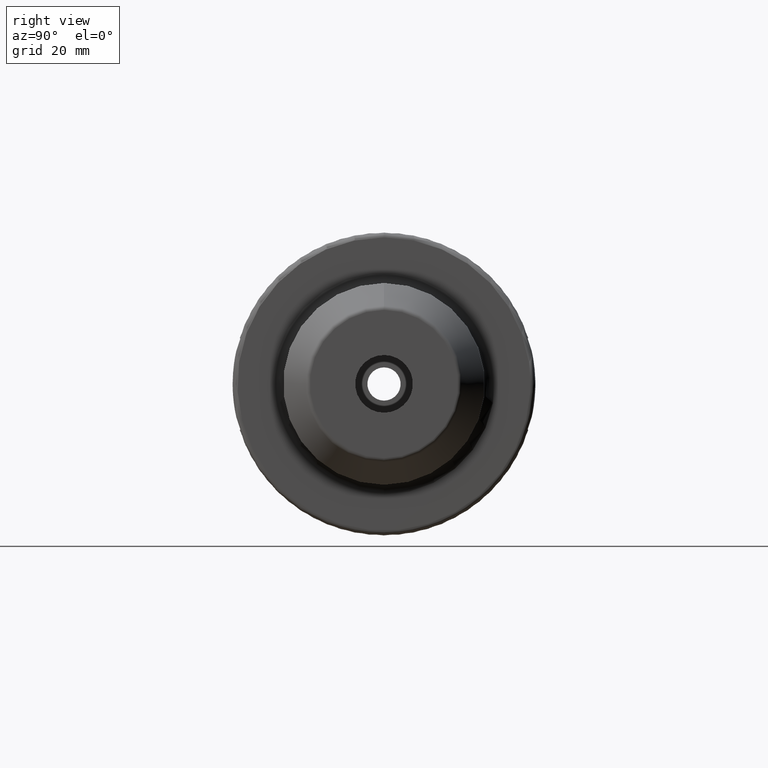
[diagram: clean part render]
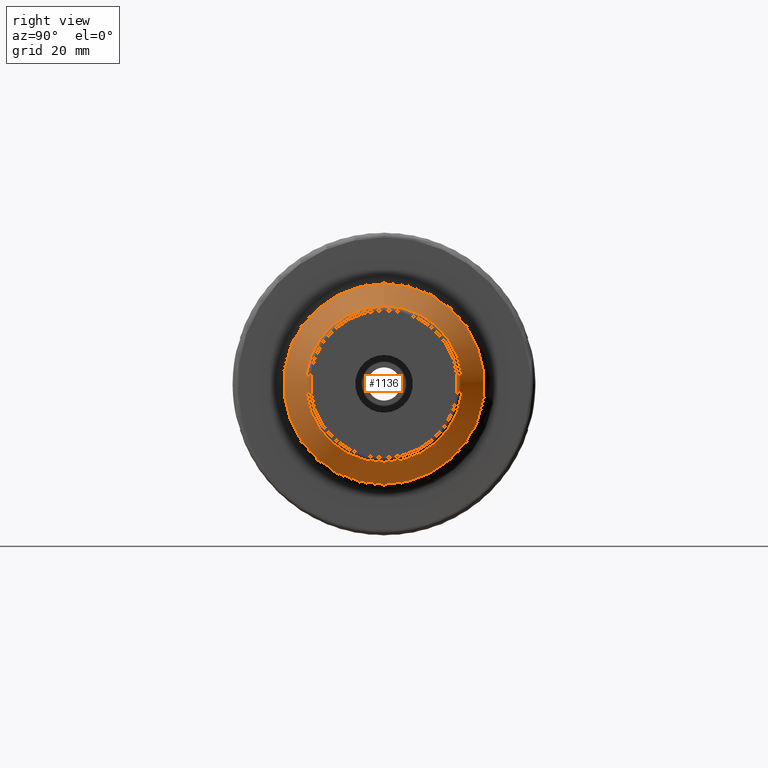
[diagram: same view with one face highlighted and labeled with its STEP entity id]
A machine part, right view. The second image highlights one B-rep face of the part: STEP entity #1136.
In plain terms, the highlighted conical surface has half-angle 30 deg.
Its self-contained STEP definition (entity closure, byte-faithful):
#50=CONICAL_SURFACE('',#1243,18.5,0.523598775598299);
#113=FACE_OUTER_BOUND('',#186,.T.);
#186=EDGE_LOOP('',(#778,#779,#780,#781));
#260=LINE('',#1777,#324);
#324=VECTOR('',#1417,18.5);
#397=CIRCLE('',#1242,16.2886751345948);
#398=CIRCLE('',#1244,20.8660254037844);
#476=VERTEX_POINT('',#1772);
#477=VERTEX_POINT('',#1776);
#592=EDGE_CURVE('',#476,#476,#397,.T.);
#593=EDGE_CURVE('',#476,#477,#260,.T.);
#594=EDGE_CURVE('',#477,#477,#398,.T.);
#778=ORIENTED_EDGE('',*,*,#592,.F.);
#779=ORIENTED_EDGE('',*,*,#593,.T.);
#780=ORIENTED_EDGE('',*,*,#594,.F.);
#781=ORIENTED_EDGE('',*,*,#593,.F.);
#1136=ADVANCED_FACE('',(#113),#50,.T.);
#1242=AXIS2_PLACEMENT_3D('',#1774,#1413,#1414);
#1243=AXIS2_PLACEMENT_3D('',#1775,#1415,#1416);
#1244=AXIS2_PLACEMENT_3D('',#1778,#1418,#1419);
#1413=DIRECTION('center_axis',(1.,0.,0.));
#1414=DIRECTION('ref_axis',(0.,0.,1.));
#1415=DIRECTION('center_axis',(-1.,0.,0.));
#1416=DIRECTION('ref_axis',(0.,0.,-1.));
#1417=DIRECTION('',(-0.866025403784439,-6.12323399573676E-17,0.5));
#1418=DIRECTION('center_axis',(-1.,0.,0.));
#1419=DIRECTION('ref_axis',(0.,0.,1.));
#1772=CARTESIAN_POINT('',(57.5,-1.99478738659326E-15,16.2886751345948));
#1774=CARTESIAN_POINT('Origin',(57.5,-1.99478738659326E-15,0.));
#1775=CARTESIAN_POINT('Origin',(53.6698729810778,0.,0.));
#1776=CARTESIAN_POINT('',(49.5717967697245,-2.5553511221672E-15,20.8660254037844));
#1777=CARTESIAN_POINT('',(53.6698729810778,-2.2655965784226E-15,18.5));
#1778=CARTESIAN_POINT('Origin',(49.5717967697245,-2.5553511221672E-15,0.));